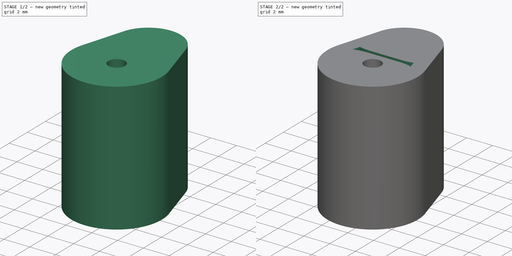
[diagram: build sequence overview — one tinted view per stage of 2, left to right]
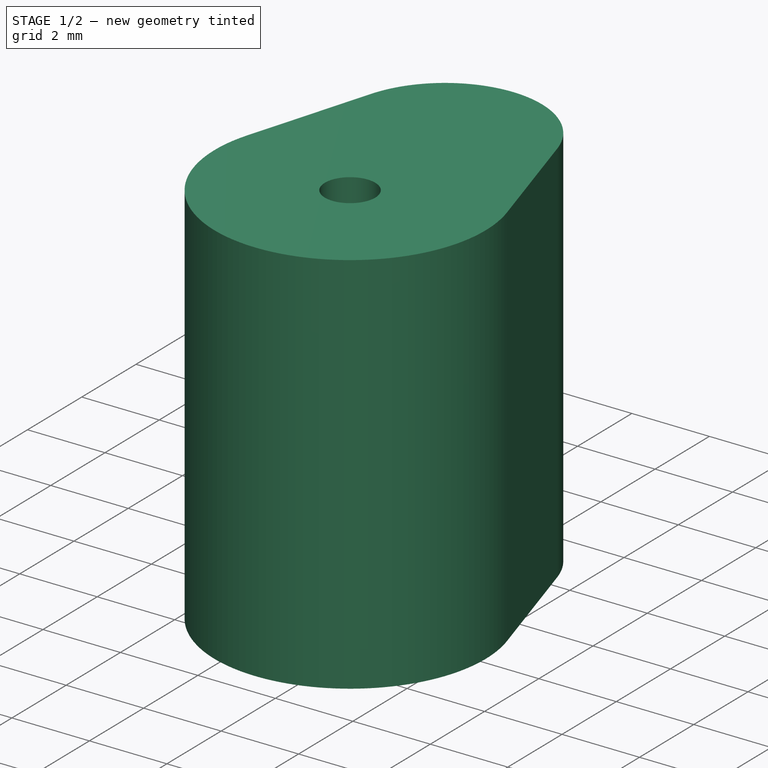
[diagram: stage 1 of 2 — iso view after this stage's code; geometry added in this stage tinted green]
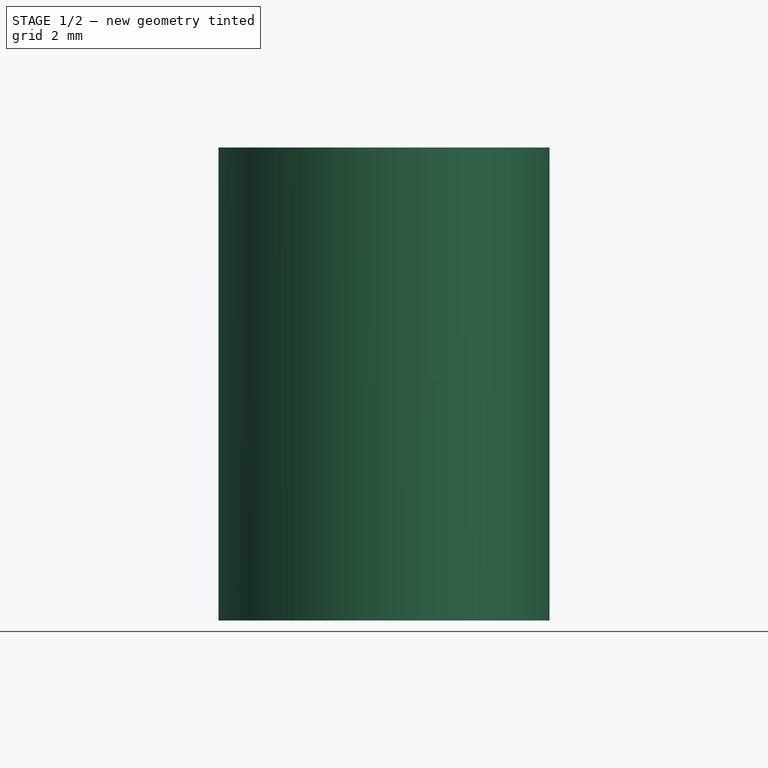
[diagram: stage 1 of 2 — front view after this stage's code; geometry added in this stage tinted green]
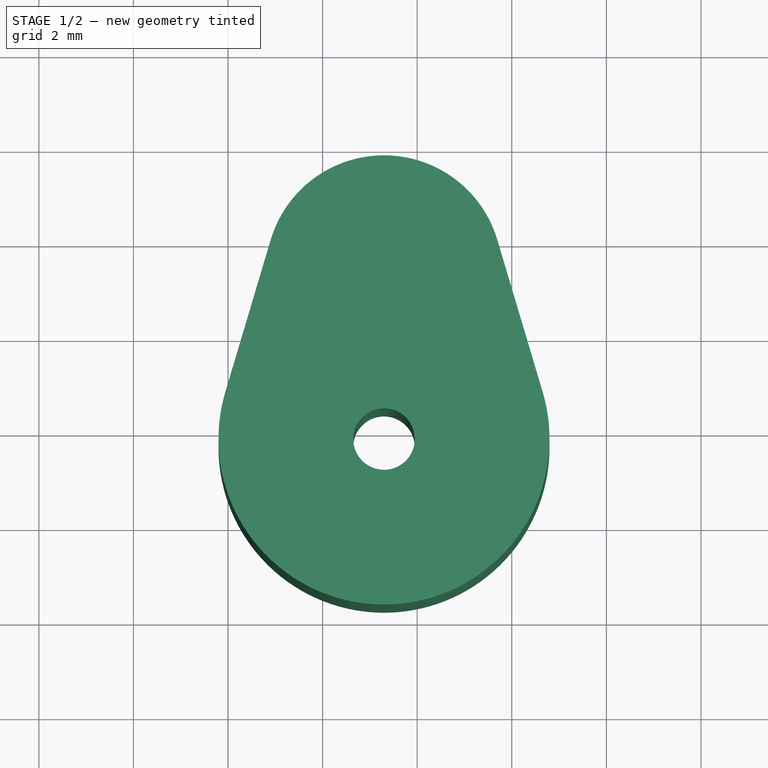
[diagram: stage 1 of 2 — top view after this stage's code; geometry added in this stage tinted green]
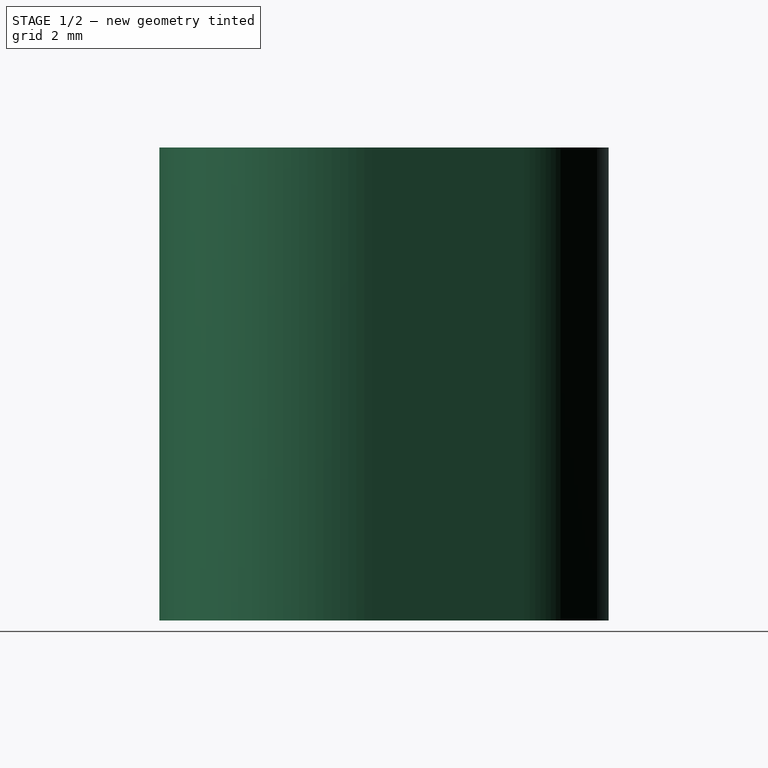
[diagram: stage 1 of 2 — right view after this stage's code; geometry added in this stage tinted green]
FCSTD DOCUMENT  (FreeCAD 1.1R39747 (Git))
Label: Адаптер для кивка
License: All rights reserved
LicenseURL: https://en.wikipedia.org/wiki/All_rights_reserved
objects: Sketcher::SketchObject×2, App::Point×1, PartDesign::Pad×1, PartDesign::Pocket×1, PartDesign::Body×1
note: 11 computed .brp shape members not serialized (recipe doc carries the construction recipe); baked Part::Feature solids carry a one-line shape summary decoded from their .brp

FEATURE [App::Point] Origin001
  Role = Origin
FEATURE [Sketcher::SketchObject] Sketch
  ArcFitTolerance = 1e-06
  AttachmentSupport = -> [XY_Plane]
  ExternalTypes = [0]
  FullyConstrained = false
  MakeInternals = false
  MapMode = 5
  expr: .Constraints.a = 7 mm
  sketch-geometry (7):
    g0: ArcOfCircle CenterX=-28.7017 CenterY=11.7578 CenterZ=0 NormalX=0 NormalY=0 NormalZ=1 AngleXU=0 Radius=3.5 StartAngle=2.85184 EndAngle=6.57294
    g1: Circle CenterX=-28.7017 CenterY=11.7578 CenterZ=0 NormalX=0 NormalY=0 NormalZ=1 AngleXU=0 Radius=0.65
    g2: LineSegment StartX=-32.0558 StartY=12.7578 StartZ=0 EndX=-31.0975 EndY=15.9721 EndZ=0
    g3: LineSegment StartX=-25.3476 StartY=12.7578 StartZ=0 EndX=-26.3059 EndY=15.9721 EndZ=0
    g4: ArcOfCircle CenterX=-28.7017 CenterY=15.2578 CenterZ=0 NormalX=0 NormalY=0 NormalZ=1 AngleXU=0 Radius=2.5 StartAngle=0.289752 EndAngle=2.85184
    g5: Circle [constr] CenterX=-28.7017 CenterY=15.2578 CenterZ=0 NormalX=0 NormalY=0 NormalZ=1 AngleXU=0 Radius=2.5
    g6: Circle [constr] CenterX=-28.7017 CenterY=11.7578 CenterZ=0 NormalX=0 NormalY=0 NormalZ=1 AngleXU=0 Radius=3.5
  constraints (14):
    c: Coincident(g1,g0)
    c: Diameter(g1) = 1.3
    c: Tangent(g2,g4) = 1.5708
    c: Tangent(g3,g4) = -1.5708
    c: Diameter(g0) = 7  'a'
    c: Tangent(g2,g0) = 1.5708
    c: Tangent(g3,g0) = -1.5708
    c: Coincident(g5,g4)
    c: PointOnObject(g2,g5)
    c: Coincident(g6,g0)
    c: PointOnObject(g0,g6)
    c: Vertical(g0,g4)
    c: Diameter(g4) = 5
    c: PointOnObject(g4,g6)
FEATURE [PartDesign::Pad] Pad
  Direction = (0,0,1)
  Length = 10
  Length2 = 10
  Profile = -> Sketch
  ReferenceAxis = -> Sketch [N_Axis]
  Refine = true
  Suppressed = false
  Type = 0
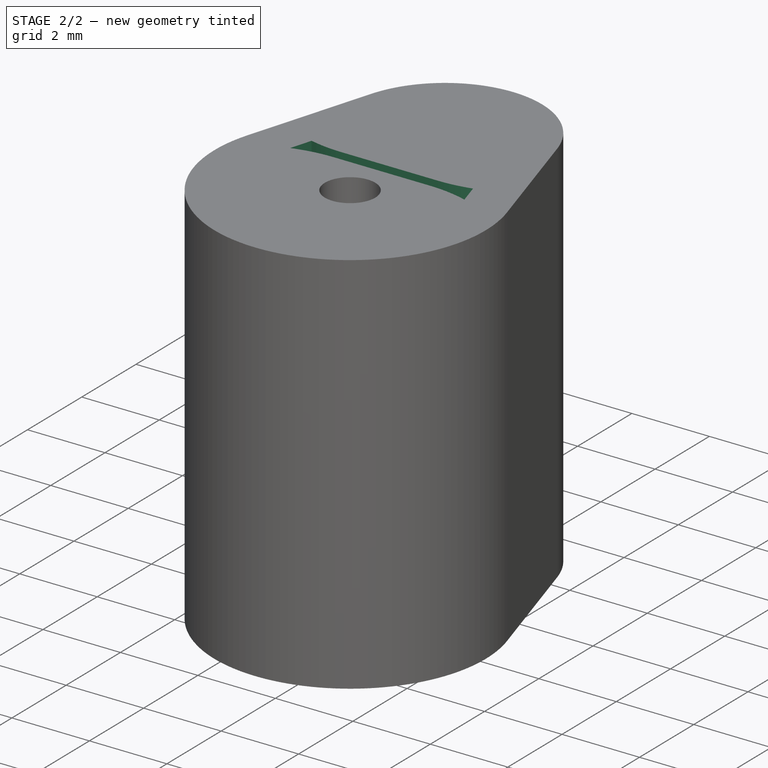
[diagram: stage 2 of 2 — iso view after this stage's code; geometry added in this stage tinted green]
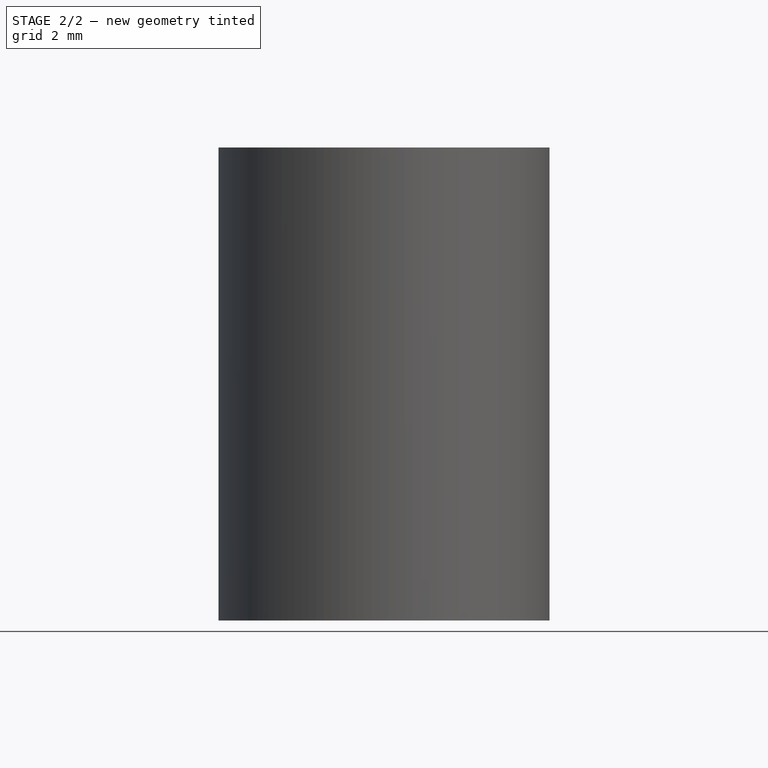
[diagram: stage 2 of 2 — front view after this stage's code; geometry added in this stage tinted green]
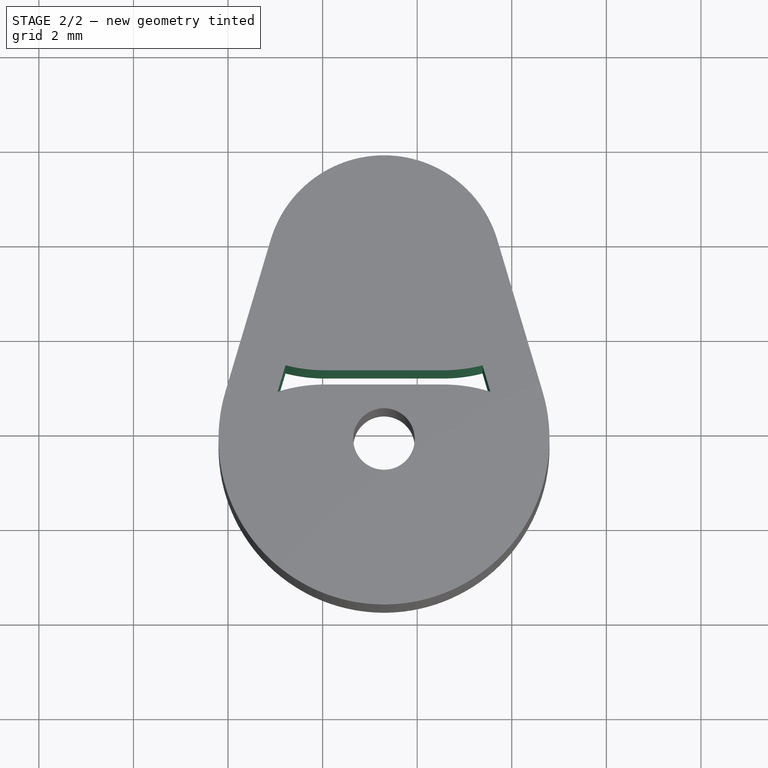
[diagram: stage 2 of 2 — top view after this stage's code; geometry added in this stage tinted green]
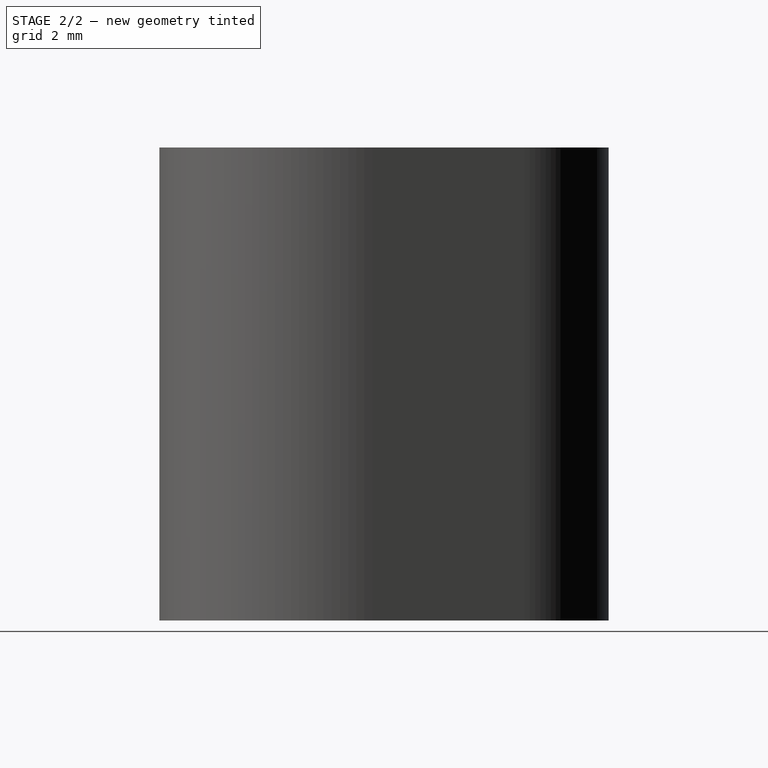
[diagram: stage 2 of 2 — right view after this stage's code; geometry added in this stage tinted green]
FEATURE [Sketcher::SketchObject] Sketch001
  ArcFitTolerance = 1e-06
  AttachmentSupport = -> [Pad]
  ExternalGeometry = -> [Pad]
  ExternalTypes = [0,0]
  FullyConstrained = false
  MakeInternals = false
  MapMode = 5
  Placement = pos=(0,0,10) rot=(0,0,1;0rad)
  sketch-geometry (10):
    g0: ArcOfCircle CenterX=-29.9517 CenterY=16.5487 CenterZ=0 NormalX=0 NormalY=0 NormalZ=1 AngleXU=0 Radius=3.33749 StartAngle=4.46003 EndAngle=4.71239
    g1: ArcOfCircle CenterX=-27.4517 CenterY=16.5487 CenterZ=0 NormalX=0 NormalY=0 NormalZ=1 AngleXU=0 Radius=3.33749 StartAngle=4.71239 EndAngle=4.96474
    g2: ArcOfCircle CenterX=-27.4517 CenterY=9.57366 CenterZ=0 NormalX=0 NormalY=0 NormalZ=1 AngleXU=0 Radius=3.33749 StartAngle=1.2665 EndAngle=1.5708
    g3: ArcOfCircle CenterX=-29.9517 CenterY=9.57366 CenterZ=0 NormalX=0 NormalY=0 NormalZ=1 AngleXU=0 Radius=3.33749 StartAngle=1.5708 EndAngle=1.8751
    g4: LineSegment StartX=-29.9517 StartY=13.2112 StartZ=0 EndX=-27.4517 EndY=13.2112 EndZ=0
    g5: LineSegment StartX=-27.4517 StartY=12.9112 StartZ=0 EndX=-29.9517 EndY=12.9112 EndZ=0
    g6: LineSegment StartX=-30.9517 StartY=12.7578 StartZ=0 EndX=-30.785 EndY=13.3169 EndZ=0
    g7: LineSegment StartX=-26.4517 StartY=12.7578 StartZ=0 EndX=-26.6184 EndY=13.3169 EndZ=0
    g8: LineSegment [constr] StartX=-32.0558 StartY=12.7578 StartZ=0 EndX=-30.9517 EndY=12.7578 EndZ=0
    g9: LineSegment [constr] StartX=-26.4517 StartY=12.7578 StartZ=0 EndX=-25.3476 EndY=12.7578 EndZ=0
  constraints (28):
    c: Equal(g3,g0)
    c: Equal(g0,g2)
    c: Equal(g2,g1)
    c: Horizontal(g5)
    c: Horizontal(g4)
    c: Vertical(g3,g0)
    c: Vertical(g2,g1)
    c: DistanceY(g2,g1) = 0.3
    c: Tangent(g5,g3) = -1.5708
    c: Tangent(g4,g0) = -1.5708
    c: Tangent(g4,g1) = -1.5708
    c: Tangent(g5,g2) = -1.5708
    c: Horizontal(g3,g2)
    c: Coincident(g6,g3)
    c: Coincident(g6,g0)
    c: Coincident(g7,g2)
    c: Coincident(g7,g1)
    c: Parallel(g6,g-4)
    c: Parallel(g7,g-3)
    c: DistanceX(g3,g2) = 4.5
    c: Horizontal(g3,g-4)
    c: DistanceX(g3,g3) = 1
    c: Coincident(g8,g-4)
    c: Coincident(g8,g3)
    c: Coincident(g9,g2)
    c: Coincident(g9,g-3)
    c: Equal(g9,g8)
    c: Distance(g8,g8) = 1.1041
FEATURE [PartDesign::Pocket] Pocket
  BaseFeature = -> Pad
  Direction = (0,0,-1)
  Length = 5
  Length2 = 5
  Profile = -> Sketch001
  ReferenceAxis = -> Sketch001 [N_Axis]
  Refine = true
  Suppressed = false
  Type = 1
FEATURE [PartDesign::Body] Body  label="Тело"
  AllowCompound = false
  Group = -> [Sketch,Pad,Sketch001,Pocket]
  Origin = -> Origin
  Tip = -> Pocket
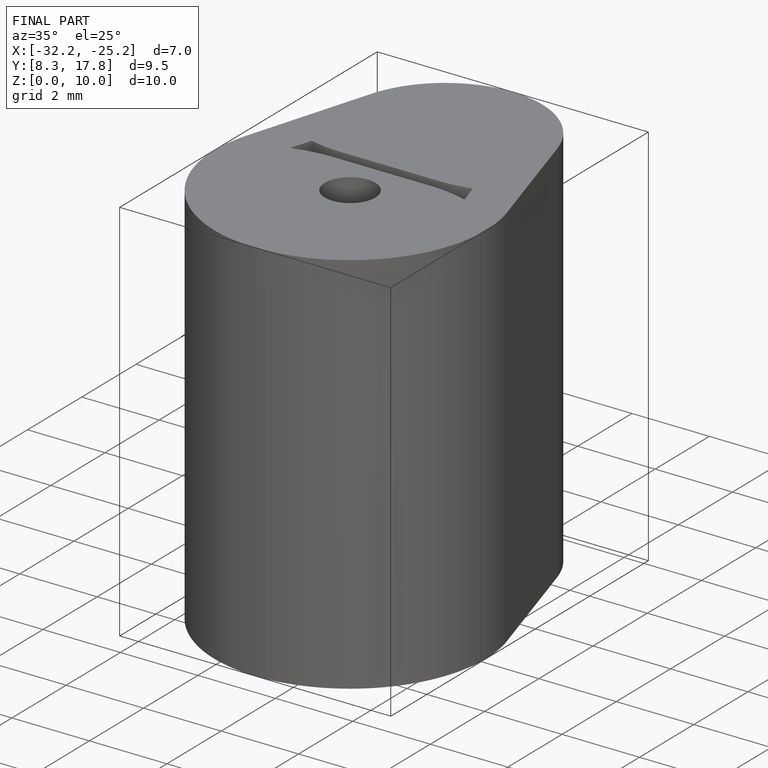
[diagram: finished part — iso view with bounding-box wireframe]
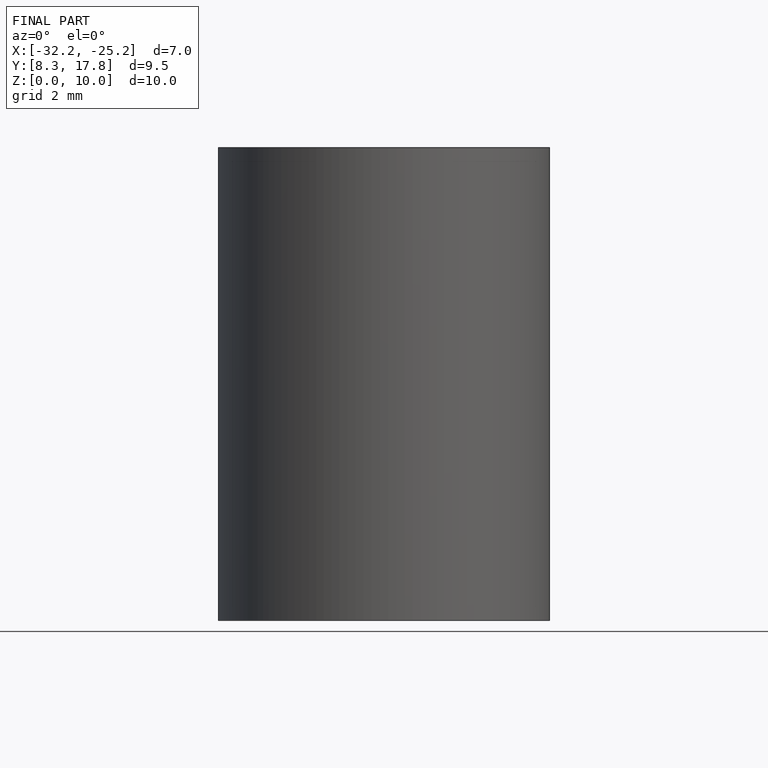
[diagram: finished part — front view with bounding-box wireframe]
